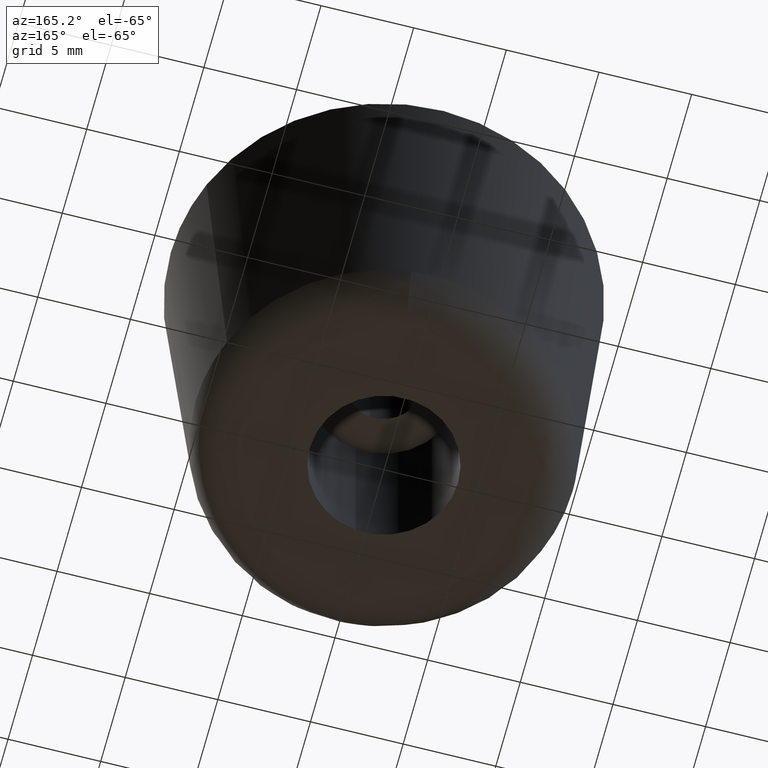
[diagram: clean part render]
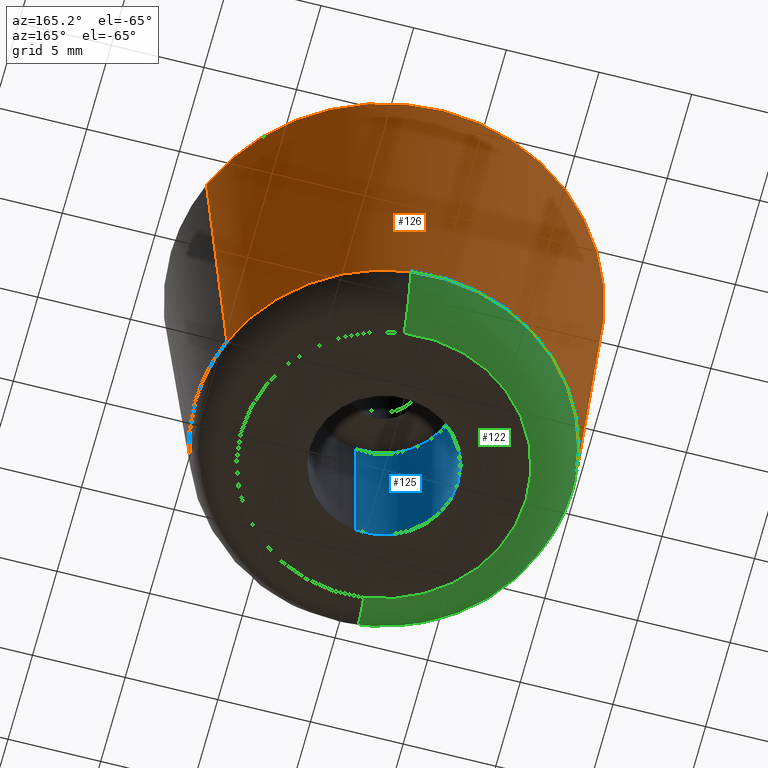
[diagram: same view with three faces highlighted in distinct colors, each labeled with its STEP entity id]
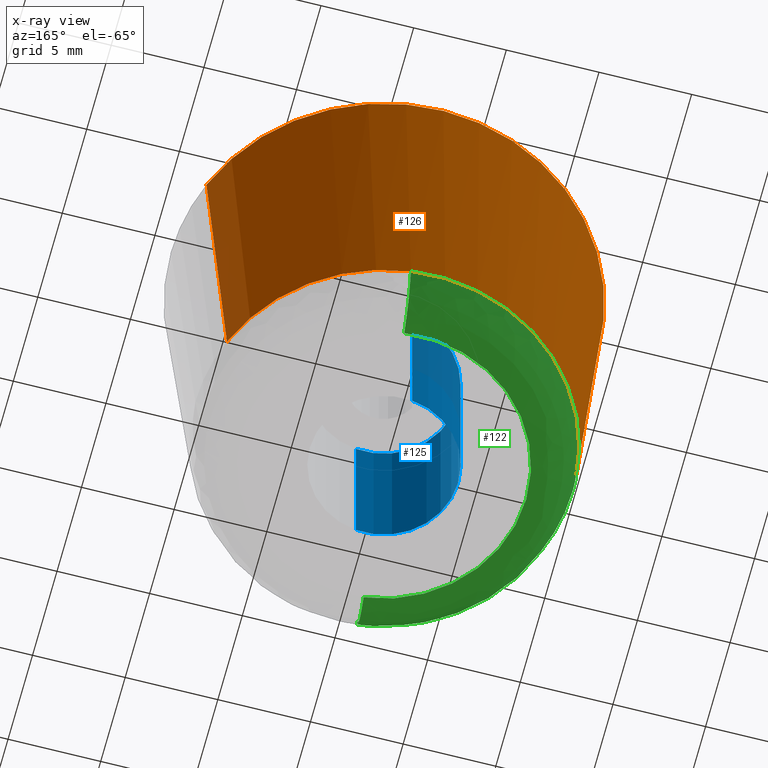
[diagram: x-ray of the same camera — body ghosted, the three highlighted faces saturated]
A machine part, auxiliary view with three faces highlighted in distinct colors.
The next image is the same camera in x-ray (body ghosted, the three faces saturated) — at least one of them is partly hidden behind the body in this view.
Their STEP definitions:

[orange] entity #126 — the highlighted face is a freeform B-spline surface patch.
#126=ADVANCED_FACE('',(#279),#278,.T.);
#278=( BOUNDED_SURFACE() B_SPLINE_SURFACE( 2,1,((#456,#457),(#458,#459),(#460,#461),(#462,#463),(#464,#465)), .UNSPECIFIED.,.F.,.F.,.F.) B_SPLINE_SURFACE_WITH_KNOTS((3,2,3),(2,2),(0.00000000000E+000,5.00000000000E-001,1.00000000000E+000),(0.00000000000E+000,1.00000000000E+000), .UNSPECIFIED. ) GEOMETRIC_REPRESENTATION_ITEM() RATIONAL_B_SPLINE_SURFACE(((1.00000000000E+000,1.00000000000E+000),(7.07106781187E-001,7.07106781187E-001),(1.00000000000E+000,1.00000000000E+000),(7.07106781187E-001,7.07106781187E-001),(1.00000000000E+000,1.00000000000E+000))) REPRESENTATION_ITEM('') SURFACE() );
#279=FACE_OUTER_BOUND('',#466,.T.);
#456=CARTESIAN_POINT('',(9.45995415082E+000,3.74284634184E+000,2.31302303713E+000));
#457=CARTESIAN_POINT('',(1.06934899282E+001,4.23089679096E+000,2.00007040567E+001));
#458=CARTESIAN_POINT('',(5.71710780897E+000,1.32028004927E+001,2.31302303713E+000));
#459=CARTESIAN_POINT('',(6.46259313725E+000,1.49243867192E+001,2.00007040567E+001));
#460=CARTESIAN_POINT('',(-3.74284634184E+000,9.45995415082E+000,2.31302303713E+000));
#461=CARTESIAN_POINT('',(-4.23089679096E+000,1.06934899282E+001,2.00007040567E+001));
#462=CARTESIAN_POINT('',(-1.32028004927E+001,5.71710780897E+000,2.31302303713E+000));
#463=CARTESIAN_POINT('',(-1.49243867192E+001,6.46259313725E+000,2.00007040567E+001));
#464=CARTESIAN_POINT('',(-9.45995415082E+000,-3.74284634184E+000,2.31302303713E+000));
#465=CARTESIAN_POINT('',(-1.06934899282E+001,-4.23089679096E+000,2.00007040567E+001));
#466=EDGE_LOOP('',(#581,#582,#583,#584,#585,#586,#587,#588));
#581=ORIENTED_EDGE('',*,*,#634,.T.);
#582=ORIENTED_EDGE('',*,*,#638,.T.);
#583=ORIENTED_EDGE('',*,*,#672,.F.);
#584=ORIENTED_EDGE('',*,*,#666,.F.);
#585=ORIENTED_EDGE('',*,*,#664,.F.);
#586=ORIENTED_EDGE('',*,*,#663,.F.);
#587=ORIENTED_EDGE('',*,*,#662,.F.);
#588=ORIENTED_EDGE('',*,*,#673,.T.);
#634=EDGE_CURVE('',#786,#787,#788,.T.);
#638=EDGE_CURVE('',#787,#808,#815,.T.);
#662=EDGE_CURVE('',#975,#982,#983,.T.);
#663=EDGE_CURVE('',#982,#989,#990,.T.);
#664=EDGE_CURVE('',#989,#996,#997,.T.);
#666=EDGE_CURVE('',#996,#1009,#1010,.T.);
#672=EDGE_CURVE('',#1009,#808,#1048,.T.);
#673=EDGE_CURVE('',#975,#786,#1054,.T.);
#786=VERTEX_POINT('',#1152);
#787=VERTEX_POINT('',#1153);
#788=CIRCLE('',#1157,1.14999998897E+001);
#808=VERTEX_POINT('',#1168);
#815=CIRCLE('',#1176,1.15000000000E+001);
#975=VERTEX_POINT('',#1286);
#982=VERTEX_POINT('',#1291);
#983=CIRCLE('',#1295,1.01734768520E+001);
#989=VERTEX_POINT('',#1296);
#990=CIRCLE('',#1300,1.01735438085E+001);
#996=VERTEX_POINT('',#1301);
#997=CIRCLE('',#1305,1.01734773741E+001);
#1009=VERTEX_POINT('',#1311);
#1010=CIRCLE('',#1315,1.01734771779E+001);
#1048=(BOUNDED_CURVE() B_SPLINE_CURVE(1,(#1334,#1335),.UNSPECIFIED.,.F.,.F.) B_SPLINE_CURVE_WITH_KNOTS((2,2),(1.11759708952E-007,9.99960194532E-001),.UNSPECIFIED.) CURVE() GEOMETRIC_REPRESENTATION_ITEM() RATIONAL_B_SPLINE_CURVE((1.00000000000E+000,1.00000000000E+000)) REPRESENTATION_ITEM('') );
#1054=(BOUNDED_CURVE() B_SPLINE_CURVE(1,(#1336,#1337),.UNSPECIFIED.,.F.,.F.) B_SPLINE_CURVE_WITH_KNOTS((2,2),(0.00000000000E+000,1.00000000000E+000),.UNSPECIFIED.) CURVE() GEOMETRIC_REPRESENTATION_ITEM() RATIONAL_B_SPLINE_CURVE((7.50000000000E-001,7.50000000000E-001)) REPRESENTATION_ITEM('') );
#1152=CARTESIAN_POINT('',(-1.06934422203E+001,-4.23087354541E+000,1.99999985370E+001));
#1153=CARTESIAN_POINT('',(-1.15000000000E+001,0.00000000000E+000,2.00000000000E+001));
#1154=CARTESIAN_POINT('',(-1.10306203283E-007,2.77220270295E-007,1.99999992685E+001));
#1155=DIRECTION('',(-6.36090209172E-008,3.33667091712E-007,-1.00000000000E+000));
#1156=DIRECTION('',(9.29864540223E-001,3.67902075062E-001,6.36090424314E-008));
#1157=AXIS2_PLACEMENT_3D('',#1154,#1155,#1156);
#1168=CARTESIAN_POINT('',(1.06934397582E+001,4.23088006655E+000,2.00000000000E+001));
#1173=CARTESIAN_POINT('',(0.00000000000E+000,0.00000000000E+000,2.00000000000E+001));
#1174=DIRECTION('',(-0.00000000000E+000,-2.18447646426E-016,-1.00000000000E+000));
#1175=DIRECTION('',(1.00000000000E+000,-0.00000000000E+000,-0.00000000000E+000));
#1176=AXIS2_PLACEMENT_3D('',#1173,#1174,#1175);
#1286=CARTESIAN_POINT('',(-9.45995617532E+000,-3.74284122495E+000,2.31302303713E+000));
#1291=CARTESIAN_POINT('',(-1.01734770000E+001,0.00000000000E+000,2.31302500000E+000));
#1292=CARTESIAN_POINT('',(-1.47993295840E-007,3.71938278398E-007,2.31302401857E+000));
#1293=DIRECTION('',(-9.64697239557E-008,5.06041202412E-007,-1.00000000000E+000));
#1294=DIRECTION('',(9.29864604298E-001,3.67901913116E-001,9.64697447901E-008));
#1295=AXIS2_PLACEMENT_3D('',#1292,#1293,#1294);
#1296=CARTESIAN_POINT('',(-1.01534020986E+001,6.38797914530E-001,2.31302499010E+000));
#1297=CARTESIAN_POINT('',(6.68085232221E-005,-1.03158265263E-009,2.31301998293E+000));
#1298=DIRECTION('',(-4.93148307963E-007,6.17334525015E-016,-1.00000000000E+000));
#1299=DIRECTION('',(1.00000000000E+000,-1.01398556103E-010,-4.93148307963E-007));
#1300=AXIS2_PLACEMENT_3D('',#1297,#1298,#1299);
#1301=CARTESIAN_POINT('',(1.21844869306E+000,1.01002484986E+001,2.31302499009E+000));
#1302=CARTESIAN_POINT('',(2.25722724068E-007,-2.71300145016E-007,2.31302497354E+000));
#1303=DIRECTION('',(-1.55902491164E-009,1.13639046376E-009,-1.00000000000E+000));
#1304=DIRECTION('',(9.98026726845E-001,-6.27905447019E-002,-1.62730310584E-009));
#1305=AXIS2_PLACEMENT_3D('',#1302,#1303,#1304);
#1311=CARTESIAN_POINT('',(9.45995309711E+000,3.74284941412E+000,2.31302499921E+000));
#1312=CARTESIAN_POINT('',(-1.77886848363E-007,-2.49968055144E-008,2.31302498874E+000));
#1313=DIRECTION('',(1.10665356318E-009,-1.15877479212E-016,-1.00000000000E+000));
#1314=DIRECTION('',(-1.19767199517E-001,-9.92802003382E-001,-1.32540683054E-010));
#1315=AXIS2_PLACEMENT_3D('',#1312,#1313,#1314);
#1334=CARTESIAN_POINT('',(9.45995415082E+000,3.74284634184E+000,2.31302303713E+000));
#1335=CARTESIAN_POINT('',(1.06934408267E+001,4.23087736388E+000,1.99999999902E+001));
#1336=CARTESIAN_POINT('',(-9.45995415082E+000,-3.74284634184E+000,2.31302303713E+000));
#1337=CARTESIAN_POINT('',(-1.06934899282E+001,-4.23089679096E+000,2.00007040567E+001));

[blue] entity #125 — the highlighted cylindrical surface (partial cylindrical patch) has radius 4 mm, axis along (0, 0, 1).
#125=ADVANCED_FACE('',(#269),#268,.F.);
#268=CYLINDRICAL_SURFACE('',#454,4.00000000000E+000);
#269=FACE_OUTER_BOUND('',#455,.T.);
#451=CARTESIAN_POINT('',(1.78148505908E-014,3.53489539882E-015,1.02500000000E+001));
#452=DIRECTION('',(3.39656988297E-015,6.27341546058E-016,1.00000000000E+000));
#453=DIRECTION('',(1.18034234657E-001,-9.93009526364E-001,2.22044604925E-016));
#454=AXIS2_PLACEMENT_3D('',#451,#452,#453);
#455=EDGE_LOOP('',(#575,#576,#577,#578,#579,#580));
#575=ORIENTED_EDGE('',*,*,#657,.F.);
#576=ORIENTED_EDGE('',*,*,#659,.F.);
#577=ORIENTED_EDGE('',*,*,#670,.F.);
#578=ORIENTED_EDGE('',*,*,#645,.T.);
#579=ORIENTED_EDGE('',*,*,#647,.T.);
#580=ORIENTED_EDGE('',*,*,#671,.T.);
#645=EDGE_CURVE('',#863,#864,#865,.T.);
#647=EDGE_CURVE('',#864,#871,#878,.T.);
#657=EDGE_CURVE('',#947,#948,#949,.T.);
#659=EDGE_CURVE('',#955,#947,#962,.T.);
#670=EDGE_CURVE('',#863,#955,#1036,.T.);
#671=EDGE_CURVE('',#871,#948,#1042,.T.);
#863=VERTEX_POINT('',#1207);
#864=VERTEX_POINT('',#1208);
#865=CIRCLE('',#1212,4.00000000000E+000);
#871=VERTEX_POINT('',#1213);
#878=CIRCLE('',#1221,4.00000000000E+000);
#947=VERTEX_POINT('',#1267);
#948=VERTEX_POINT('',#1268);
#949=CIRCLE('',#1272,4.00000000001E+000);
#955=VERTEX_POINT('',#1273);
#962=CIRCLE('',#1281,4.00000000001E+000);
#1036=(BOUNDED_CURVE() B_SPLINE_CURVE(1,(#1330,#1331),.UNSPECIFIED.,.F.,.F.) B_SPLINE_CURVE_WITH_KNOTS((2,2),(8.33333343261E-002,9.16666667006E-001),.UNSPECIFIED.) CURVE() GEOMETRIC_REPRESENTATION_ITEM() RATIONAL_B_SPLINE_CURVE((1.00000000000E+000,1.00000000000E+000)) REPRESENTATION_ITEM('') );
#1042=(BOUNDED_CURVE() B_SPLINE_CURVE(1,(#1332,#1333),.UNSPECIFIED.,.F.,.F.) B_SPLINE_CURVE_WITH_KNOTS((2,2),(8.33333333333E-002,9.16666666667E-001),.UNSPECIFIED.) CURVE() GEOMETRIC_REPRESENTATION_ITEM() RATIONAL_B_SPLINE_CURVE((7.50000000000E-001,7.50000000000E-001)) REPRESENTATION_ITEM('') );
#1207=CARTESIAN_POINT('',(4.72135486076E-001,-3.97203827811E+000,2.55494966258E-016));
#1208=CARTESIAN_POINT('',(-4.00000000000E+000,0.00000000000E+000,2.32648548928E-015));
#1209=CARTESIAN_POINT('',(1.77635683940E-015,6.66133814775E-016,1.91634238637E-016));
#1210=DIRECTION('',(-5.33712812660E-016,-7.95172311382E-017,-1.00000000000E+000));
#1211=DIRECTION('',(-1.00000000000E+000,2.35922392733E-016,5.33712812660E-016));
#1212=AXIS2_PLACEMENT_3D('',#1209,#1210,#1211);
#1213=CARTESIAN_POINT('',(-4.72823444808E-001,3.97195644362E+000,1.28147190659E-016));
#1218=CARTESIAN_POINT('',(1.77635683940E-015,6.66133814775E-016,1.91634238637E-016));
#1219=DIRECTION('',(-5.33712812660E-016,-7.95172311382E-017,-1.00000000000E+000));
#1220=DIRECTION('',(-1.00000000000E+000,2.35922392733E-016,5.33712812660E-016));
#1221=AXIS2_PLACEMENT_3D('',#1218,#1219,#1220);
#1267=CARTESIAN_POINT('',(-4.00000000002E+000,-4.57533809349E-017,1.00000000000E+001));
#1268=CARTESIAN_POINT('',(-4.72823444810E-001,3.97195644364E+000,1.00000000000E+001));
#1269=CARTESIAN_POINT('',(-1.02327035734E-011,9.62629975731E-012,1.00000000000E+001));
#1270=DIRECTION('',(-8.88178419697E-016,4.71027737605E-016,-1.00000000000E+000));
#1271=DIRECTION('',(-1.00000000000E+000,-2.40646391703E-012,8.88178419696E-016));
#1272=AXIS2_PLACEMENT_3D('',#1269,#1270,#1271);
#1273=CARTESIAN_POINT('',(4.72135486076E-001,-3.97203827811E+000,1.00000000000E+001));
#1278=CARTESIAN_POINT('',(-1.02327035734E-011,9.62629975731E-012,1.00000000000E+001));
#1279=DIRECTION('',(-8.88178419697E-016,4.71027737605E-016,-1.00000000000E+000));
#1280=DIRECTION('',(-1.00000000000E+000,-2.40646391703E-012,8.88178419696E-016));
#1281=AXIS2_PLACEMENT_3D('',#1278,#1279,#1280);
#1330=CARTESIAN_POINT('',(4.72136938627E-001,-3.97203810545E+000,1.19129152099E-008));
#1331=CARTESIAN_POINT('',(4.72136938627E-001,-3.97203810545E+000,1.00000000041E+001));
#1332=CARTESIAN_POINT('',(-4.72136938627E-001,3.97203810545E+000,-4.29286236188E-015));
#1333=CARTESIAN_POINT('',(-4.72136938627E-001,3.97203810545E+000,1.00000000000E+001));

[green] entity #122 — the highlighted face is a freeform B-spline surface patch.
#122=ADVANCED_FACE('',(#239),#238,.T.);
#238=( BOUNDED_SURFACE() B_SPLINE_SURFACE( 2,2,((#394,#395,#396,#397,#398),(#399,#400,#401,#402,#403),(#404,#405,#406,#407,#408),(#409,#410,#411,#412,#413),(#414,#415,#416,#417,#418)), .UNSPECIFIED.,.F.,.F.,.F.) B_SPLINE_SURFACE_WITH_KNOTS((3,2,3),(3,2,3),(0.00000000000E+000,5.00000000000E-001,1.00000000000E+000),(0.00000000000E+000,5.00000000000E-001,1.00000000000E+000), .UNSPECIFIED. ) GEOMETRIC_REPRESENTATION_ITEM() RATIONAL_B_SPLINE_SURFACE(((1.00000000000E+000,7.33072302028E-001,1.00000000000E+000,7.33072302028E-001,1.00000000000E+000),(7.07106781187E-001,5.18360395864E-001,7.07106781187E-001,5.18360395864E-001,7.07106781187E-001),(1.00000000000E+000,7.33072302028E-001,1.00000000000E+000,7.33072302028E-001,1.00000000000E+000),(7.07106781187E-001,5.18360395864E-001,7.07106781187E-001,5.18360395864E-001,7.07106781187E-001),(1.00000000000E+000,7.33072302028E-001,1.00000000000E+000,7.33072302028E-001,1.00000000000E+000))) REPRESENTATION_ITEM('') SURFACE() );
#239=FACE_OUTER_BOUND('',#419,.T.);
#394=CARTESIAN_POINT('',(-1.21844870902E+000,-1.01002486309E+001,2.31302500000E+000));
#395=CARTESIAN_POINT('',(-1.19767185800E+000,-9.92802032161E+000,-9.72295883827E-014));
#396=CARTESIAN_POINT('',(-9.19869330651E-001,-7.62519495383E+000,-9.72555369572E-014));
#397=CARTESIAN_POINT('',(-6.42066803308E-001,-5.32236958606E+000,-9.75324842967E-014));
#398=CARTESIAN_POINT('',(-6.21289952288E-001,-5.15014127680E+000,2.31302500000E+000));
#399=CARTESIAN_POINT('',(-1.13186973399E+001,-8.88179992185E+000,2.31302500000E+000));
#400=CARTESIAN_POINT('',(-1.11256921796E+001,-8.73034846361E+000,-9.76579478923E-014));
#401=CARTESIAN_POINT('',(-8.54506428448E+000,-6.70532562318E+000,-9.76996261670E-014));
#402=CARTESIAN_POINT('',(-5.96443638936E+000,-4.68030278275E+000,-9.78353802107E-014));
#403=CARTESIAN_POINT('',(-5.77143122909E+000,-4.52885132451E+000,2.31302500000E+000));
#404=CARTESIAN_POINT('',(-1.01002486309E+001,1.21844870902E+000,2.31302500000E+000));
#405=CARTESIAN_POINT('',(-9.92802032161E+000,1.19767185800E+000,-9.78353802107E-014));
#406=CARTESIAN_POINT('',(-7.62519495383E+000,9.19869330651E-001,-9.76996261670E-014));
#407=CARTESIAN_POINT('',(-5.32236958606E+000,6.42066803308E-001,-9.78353802107E-014));
#408=CARTESIAN_POINT('',(-5.15014127680E+000,6.21289952288E-001,2.31302500000E+000));
#409=CARTESIAN_POINT('',(-8.88179992185E+000,1.13186973399E+001,2.31302500000E+000));
#410=CARTESIAN_POINT('',(-8.73034846361E+000,1.11256921796E+001,-9.79608438062E-014));
#411=CARTESIAN_POINT('',(-6.70532562318E+000,8.54506428448E+000,-9.78835739406E-014));
#412=CARTESIAN_POINT('',(-4.68030278275E+000,5.96443638936E+000,-9.79608438062E-014));
#413=CARTESIAN_POINT('',(-4.52885132451E+000,5.77143122909E+000,2.31302500000E+000));
#414=CARTESIAN_POINT('',(1.21844870902E+000,1.01002486309E+001,2.31302500000E+000));
#415=CARTESIAN_POINT('',(1.19767185800E+000,9.92802032161E+000,-9.75324842967E-014));
#416=CARTESIAN_POINT('',(9.19869330651E-001,7.62519495383E+000,-9.72555369572E-014));
#417=CARTESIAN_POINT('',(6.42066803308E-001,5.32236958606E+000,-9.75324842967E-014));
#418=CARTESIAN_POINT('',(6.21289952288E-001,5.15014127680E+000,2.31302500000E+000));
#419=EDGE_LOOP('',(#556,#557,#558,#559,#560,#561,#562,#563));
#556=ORIENTED_EDGE('',*,*,#642,.F.);
#557=ORIENTED_EDGE('',*,*,#644,.F.);
#558=ORIENTED_EDGE('',*,*,#660,.F.);
#559=ORIENTED_EDGE('',*,*,#661,.T.);
#560=ORIENTED_EDGE('',*,*,#662,.T.);
#561=ORIENTED_EDGE('',*,*,#663,.T.);
#562=ORIENTED_EDGE('',*,*,#664,.T.);
#563=ORIENTED_EDGE('',*,*,#665,.T.);
#642=EDGE_CURVE('',#842,#843,#844,.T.);
#644=EDGE_CURVE('',#850,#842,#857,.T.);
#660=EDGE_CURVE('',#968,#850,#969,.T.);
#661=EDGE_CURVE('',#968,#975,#976,.T.);
#662=EDGE_CURVE('',#975,#982,#983,.T.);
#663=EDGE_CURVE('',#982,#989,#990,.T.);
#664=EDGE_CURVE('',#989,#996,#997,.T.);
#665=EDGE_CURVE('',#996,#843,#1003,.T.);
#842=VERTEX_POINT('',#1192);
#843=VERTEX_POINT('',#1193);
#844=CIRCLE('',#1197,7.68047900035E+000);
#850=VERTEX_POINT('',#1198);
#857=CIRCLE('',#1206,7.68047900035E+000);
#968=VERTEX_POINT('',#1282);
#969=(BOUNDED_CURVE() B_SPLINE_CURVE(2,(#1283,#1284,#1285),.UNSPECIFIED.,.F.,.F.) B_SPLINE_CURVE_WITH_KNOTS((3,3),(2.53320740292E-007,5.00000000000E-001),.UNSPECIFIED.) CURVE() GEOMETRIC_REPRESENTATION_ITEM() RATIONAL_B_SPLINE_CURVE((1.00000000000E+000,7.33072302028E-001,1.00000000000E+000)) REPRESENTATION_ITEM('') );
#975=VERTEX_POINT('',#1286);
#976=CIRCLE('',#1290,1.01734767553E+001);
#982=VERTEX_POINT('',#1291);
#983=CIRCLE('',#1295,1.01734768520E+001);
#989=VERTEX_POINT('',#1296);
#990=CIRCLE('',#1300,1.01735438085E+001);
#996=VERTEX_POINT('',#1301);
#997=CIRCLE('',#1305,1.01734773741E+001);
#1003=(BOUNDED_CURVE() B_SPLINE_CURVE(3,(#1306,#1307,#1308,#1309,#1310),.UNSPECIFIED.,.F.,.F.) B_SPLINE_CURVE_WITH_KNOTS((4,1,4),(0.00000000000E+000,2.50000140384E-001,5.00000246769E-001),.UNSPECIFIED.) CURVE() GEOMETRIC_REPRESENTATION_ITEM() RATIONAL_B_SPLINE_CURVE((1.00000000000E+000,1.00000000000E+000,1.00000000000E+000,1.00000000000E+000,1.00000000000E+000)) REPRESENTATION_ITEM('') );
#1192=CARTESIAN_POINT('',(-7.68047900070E+000,-1.11022302463E-015,1.49439181387E-016));
#1193=CARTESIAN_POINT('',(9.20081539490E-001,7.62516935116E+000,-9.86938604608E-014));
#1194=CARTESIAN_POINT('',(-3.52121887204E-010,-6.47135678378E-011,7.47195915314E-017));
#1195=DIRECTION('',(-9.72850660614E-018,-1.29517948368E-014,-1.00000000000E+000));
#1196=DIRECTION('',(-1.00000000000E+000,8.42594050088E-012,9.72850649701E-018));
#1197=AXIS2_PLACEMENT_3D('',#1194,#1195,#1196);
#1198=CARTESIAN_POINT('',(-9.19869330706E-001,-7.62519495429E+000,9.88436291842E-014));
#1203=CARTESIAN_POINT('',(-3.52121887204E-010,-6.47135678378E-011,7.47195915314E-017));
#1204=DIRECTION('',(-9.72850660614E-018,-1.29517948368E-014,-1.00000000000E+000));
#1205=DIRECTION('',(-1.00000000000E+000,8.42594050088E-012,9.72850649701E-018));
#1206=AXIS2_PLACEMENT_3D('',#1203,#1204,#1205);
#1282=CARTESIAN_POINT('',(-1.21844866371E+000,-1.01002482553E+001,2.31302330606E+000));
#1283=CARTESIAN_POINT('',(-1.21844870902E+000,-1.01002486309E+001,2.31302500000E+000));
#1284=CARTESIAN_POINT('',(-1.19767185800E+000,-9.92802032161E+000,-9.72295883827E-014));
#1285=CARTESIAN_POINT('',(-9.19869330651E-001,-7.62519495383E+000,-9.72555369572E-014));
#1286=CARTESIAN_POINT('',(-9.45995617532E+000,-3.74284122495E+000,2.31302303713E+000));
#1287=CARTESIAN_POINT('',(-5.50580416814E-008,-1.25686817398E-007,2.31302319410E+000));
#1288=DIRECTION('',(2.20297066969E-008,-1.37426461922E-008,-1.00000000000E+000));
#1289=DIRECTION('',(-7.84582949810E-002,9.96917396753E-001,-1.54286962928E-008));
#1290=AXIS2_PLACEMENT_3D('',#1287,#1288,#1289);
#1291=CARTESIAN_POINT('',(-1.01734770000E+001,0.00000000000E+000,2.31302500000E+000));
#1292=CARTESIAN_POINT('',(-1.47993295840E-007,3.71938278398E-007,2.31302401857E+000));
#1293=DIRECTION('',(-9.64697239557E-008,5.06041202412E-007,-1.00000000000E+000));
#1294=DIRECTION('',(9.29864604298E-001,3.67901913116E-001,9.64697447901E-008));
#1295=AXIS2_PLACEMENT_3D('',#1292,#1293,#1294);
#1296=CARTESIAN_POINT('',(-1.01534020986E+001,6.38797914530E-001,2.31302499010E+000));
#1297=CARTESIAN_POINT('',(6.68085232221E-005,-1.03158265263E-009,2.31301998293E+000));
#1298=DIRECTION('',(-4.93148307963E-007,6.17334525015E-016,-1.00000000000E+000));
#1299=DIRECTION('',(1.00000000000E+000,-1.01398556103E-010,-4.93148307963E-007));
#1300=AXIS2_PLACEMENT_3D('',#1297,#1298,#1299);
#1301=CARTESIAN_POINT('',(1.21844869306E+000,1.01002484986E+001,2.31302499009E+000));
#1302=CARTESIAN_POINT('',(2.25722724068E-007,-2.71300145016E-007,2.31302497354E+000));
#1303=DIRECTION('',(-1.55902491164E-009,1.13639046376E-009,-1.00000000000E+000));
#1304=DIRECTION('',(9.98026726845E-001,-6.27905447019E-002,-1.62730310584E-009));
#1305=AXIS2_PLACEMENT_3D('',#1302,#1303,#1304);
#1306=CARTESIAN_POINT('',(1.21844870902E+000,1.01002486309E+001,2.31302500000E+000));
#1307=CARTESIAN_POINT('',(1.21345587981E+000,1.00588609090E+001,1.69626164897E+000));
#1308=CARTESIAN_POINT('',(1.14335741269E+000,9.47778437995E+000,4.88785016981E-001));
#1309=CARTESIAN_POINT('',(9.93903660079E-001,8.23889754870E+000,-4.55710668841E-003));
#1310=CARTESIAN_POINT('',(9.19869129634E-001,7.62519328751E+000,4.66002867079E-013));